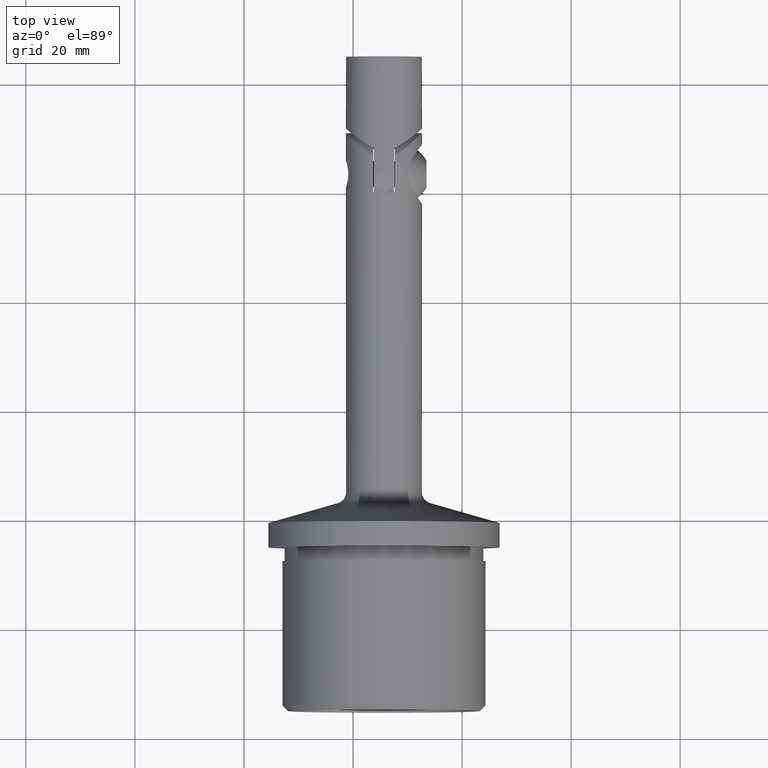
[diagram: clean part render]
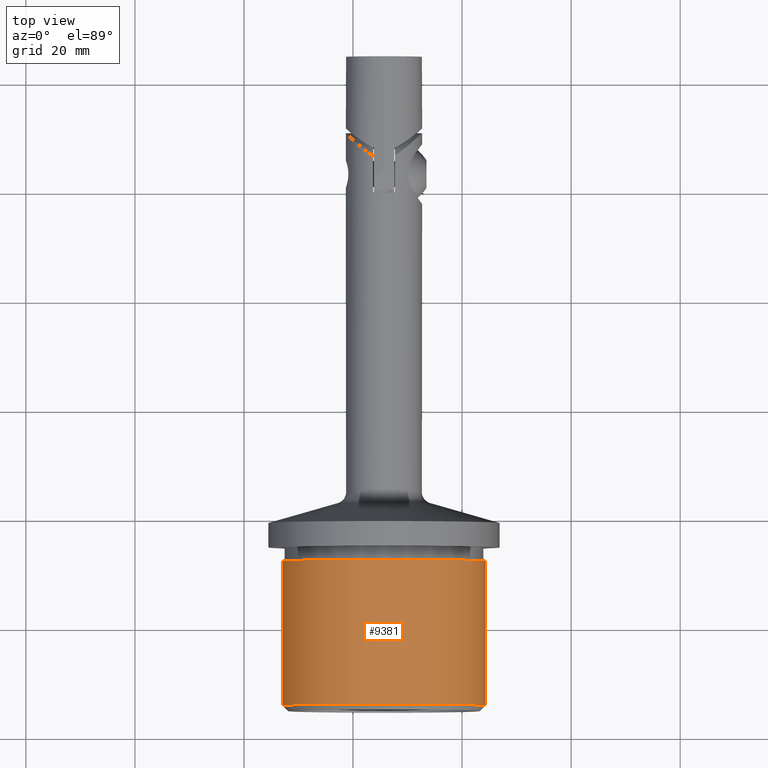
[diagram: same view with one face highlighted and labeled with its STEP entity id]
A machine part, top view. The second image highlights one B-rep face of the part: STEP entity #9381.
In plain terms, the highlighted cylindrical surface (bore or boss wall) has radius 18.65 mm, axis along (-0, -1, -0).
Its self-contained STEP definition (entity closure, byte-faithful):
#51 = CARTESIAN_POINT ( 'NONE',  ( 0.000000000000000000, 27.50000000000000000, -18.64999999999999858 ) ) ;
#181 = CARTESIAN_POINT ( 'NONE',  ( 0.000000000000000000, 1.000000000000000888, -18.64999999999999858 ) ) ;
#619 = AXIS2_PLACEMENT_3D ( 'NONE', #1220, #5256, #10509 ) ;
#1220 = CARTESIAN_POINT ( 'NONE',  ( 0.000000000000000000, 27.50000000000000000, 0.000000000000000000 ) ) ;
#1269 = DIRECTION ( 'NONE',  ( -0.000000000000000000, -1.000000000000000000, -0.000000000000000000 ) ) ;
#3257 = CARTESIAN_POINT ( 'NONE',  ( 0.000000000000000000, 1.000000000000000888, 0.000000000000000000 ) ) ;
#3583 = DIRECTION ( 'NONE',  ( 0.000000000000000000, 0.000000000000000000, -1.000000000000000000 ) ) ;
#3657 = EDGE_CURVE ( 'NONE', #6885, #6885, #8373, .T. ) ;
#4240 = EDGE_LOOP ( 'NONE', ( #5122 ) ) ;
#4838 = CYLINDRICAL_SURFACE ( 'NONE', #12539, 18.64999999999999858 ) ;
#5122 = ORIENTED_EDGE ( 'NONE', *, *, #3657, .T. ) ;
#5256 = DIRECTION ( 'NONE',  ( -0.000000000000000000, -1.000000000000000000, -0.000000000000000000 ) ) ;
#5636 = CIRCLE ( 'NONE', #11344, 18.64999999999999858 ) ;
#6357 = DIRECTION ( 'NONE',  ( 0.000000000000000000, 0.000000000000000000, -1.000000000000000000 ) ) ;
#6885 = VERTEX_POINT ( 'NONE', #51 ) ;
#6959 = ORIENTED_EDGE ( 'NONE', *, *, #9920, .F. ) ;
#7220 = VERTEX_POINT ( 'NONE', #181 ) ;
#8373 = CIRCLE ( 'NONE', #619, 18.64999999999999858 ) ;
#8748 = DIRECTION ( 'NONE',  ( -0.000000000000000000, -1.000000000000000000, -0.000000000000000000 ) ) ;
#8842 = CARTESIAN_POINT ( 'NONE',  ( 0.000000000000000000, 30.00000000000000000, 0.000000000000000000 ) ) ;
#9381 = ADVANCED_FACE ( 'NONE', ( #11451, #10775 ), #4838, .T. ) ;
#9920 = EDGE_CURVE ( 'NONE', #7220, #7220, #5636, .T. ) ;
#10509 = DIRECTION ( 'NONE',  ( 0.000000000000000000, 0.000000000000000000, -1.000000000000000000 ) ) ;
#10775 = FACE_OUTER_BOUND ( 'NONE', #11326, .T. ) ;
#11326 = EDGE_LOOP ( 'NONE', ( #6959 ) ) ;
#11344 = AXIS2_PLACEMENT_3D ( 'NONE', #3257, #1269, #6357 ) ;
#11451 = FACE_OUTER_BOUND ( 'NONE', #4240, .T. ) ;
#12539 = AXIS2_PLACEMENT_3D ( 'NONE', #8842, #8748, #3583 ) ;